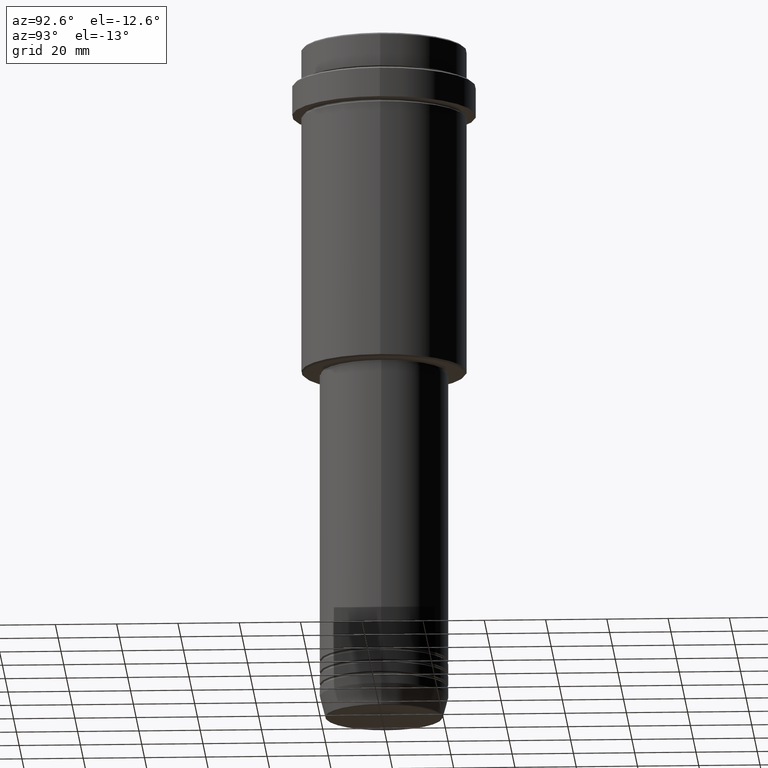
[diagram: clean part render]
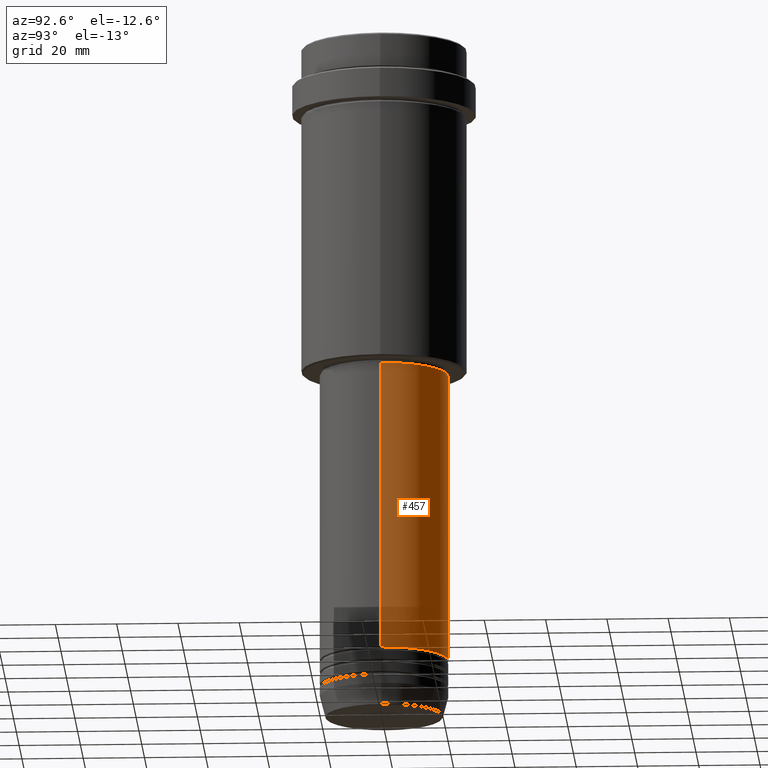
[diagram: same view with one face highlighted and labeled with its STEP entity id]
A machine part, auxiliary view. The second image highlights one B-rep face of the part: STEP entity #457.
In plain terms, the highlighted cylindrical surface (partial cylindrical patch) has radius 21 mm, axis along (-0, -0, 1).
Its self-contained STEP definition (entity closure, byte-faithful):
#11 = VERTEX_POINT ( 'NONE', #373 ) ;
#25 = DIRECTION ( 'NONE',  ( -0.000000000000000000, -0.000000000000000000, 1.000000000000000000 ) ) ;
#35 = DIRECTION ( 'NONE',  ( 1.000000000000000000, 0.000000000000000000, 0.000000000000000000 ) ) ;
#61 = ORIENTED_EDGE ( 'NONE', *, *, #1030, .T. ) ;
#71 = AXIS2_PLACEMENT_3D ( 'NONE', #706, #698, #35 ) ;
#143 = DIRECTION ( 'NONE',  ( 1.000000000000000000, 0.000000000000000000, 0.000000000000000000 ) ) ;
#148 = CARTESIAN_POINT ( 'NONE',  ( -20.99999999999999645, 2.571758278209441267E-15, -109.0000000000000284 ) ) ;
#174 = DIRECTION ( 'NONE',  ( -0.000000000000000000, -0.000000000000000000, 1.000000000000000000 ) ) ;
#231 = FACE_OUTER_BOUND ( 'NONE', #1141, .T. ) ;
#259 = CARTESIAN_POINT ( 'NONE',  ( 0.000000000000000000, 0.000000000000000000, -203.9999999999999147 ) ) ;
#261 = ORIENTED_EDGE ( 'NONE', *, *, #1205, .T. ) ;
#263 = EDGE_CURVE ( 'NONE', #11, #1084, #640, .T. ) ;
#373 = CARTESIAN_POINT ( 'NONE',  ( 20.99999999999999645, 0.000000000000000000, -109.0000000000000284 ) ) ;
#457 = ADVANCED_FACE ( 'NONE', ( #231 ), #1004, .T. ) ;
#476 = EDGE_CURVE ( 'NONE', #1383, #11, #1228, .T. ) ;
#479 = ORIENTED_EDGE ( 'NONE', *, *, #476, .F. ) ;
#493 = DIRECTION ( 'NONE',  ( -0.000000000000000000, -0.000000000000000000, 1.000000000000000000 ) ) ;
#617 = LINE ( 'NONE', #1051, #1007 ) ;
#631 = DIRECTION ( 'NONE',  ( -0.000000000000000000, -0.000000000000000000, 1.000000000000000000 ) ) ;
#640 = CIRCLE ( 'NONE', #71, 20.99999999999999645 ) ;
#668 = AXIS2_PLACEMENT_3D ( 'NONE', #259, #493, #143 ) ;
#695 = CARTESIAN_POINT ( 'NONE',  ( -21.00000000000000000, 2.571758278209441661E-15, -203.9999999999999147 ) ) ;
#698 = DIRECTION ( 'NONE',  ( -0.000000000000000000, -0.000000000000000000, 1.000000000000000000 ) ) ;
#706 = CARTESIAN_POINT ( 'NONE',  ( 0.000000000000000000, 0.000000000000000000, -109.0000000000000284 ) ) ;
#802 = CIRCLE ( 'NONE', #668, 21.00000000000000000 ) ;
#914 = CARTESIAN_POINT ( 'NONE',  ( 21.00000000000000000, 0.000000000000000000, -203.9999999999999147 ) ) ;
#1004 = CYLINDRICAL_SURFACE ( 'NONE', #1234, 20.99999999999999645 ) ;
#1007 = VECTOR ( 'NONE', #631, 1000.000000000000000 ) ;
#1030 = EDGE_CURVE ( 'NONE', #1383, #1372, #802, .T. ) ;
#1051 = CARTESIAN_POINT ( 'NONE',  ( -20.99999999999999645, 2.571758278209441267E-15, 0.000000000000000000 ) ) ;
#1084 = VERTEX_POINT ( 'NONE', #148 ) ;
#1099 = VECTOR ( 'NONE', #174, 1000.000000000000000 ) ;
#1106 = ORIENTED_EDGE ( 'NONE', *, *, #263, .F. ) ;
#1111 = CARTESIAN_POINT ( 'NONE',  ( 0.000000000000000000, 0.000000000000000000, 0.000000000000000000 ) ) ;
#1141 = EDGE_LOOP ( 'NONE', ( #61, #261, #1106, #479 ) ) ;
#1205 = EDGE_CURVE ( 'NONE', #1372, #1084, #617, .T. ) ;
#1228 = LINE ( 'NONE', #1281, #1099 ) ;
#1234 = AXIS2_PLACEMENT_3D ( 'NONE', #1111, #25, #1342 ) ;
#1281 = CARTESIAN_POINT ( 'NONE',  ( 20.99999999999999645, 0.000000000000000000, 0.000000000000000000 ) ) ;
#1342 = DIRECTION ( 'NONE',  ( 1.000000000000000000, 0.000000000000000000, 0.000000000000000000 ) ) ;
#1372 = VERTEX_POINT ( 'NONE', #695 ) ;
#1383 = VERTEX_POINT ( 'NONE', #914 ) ;